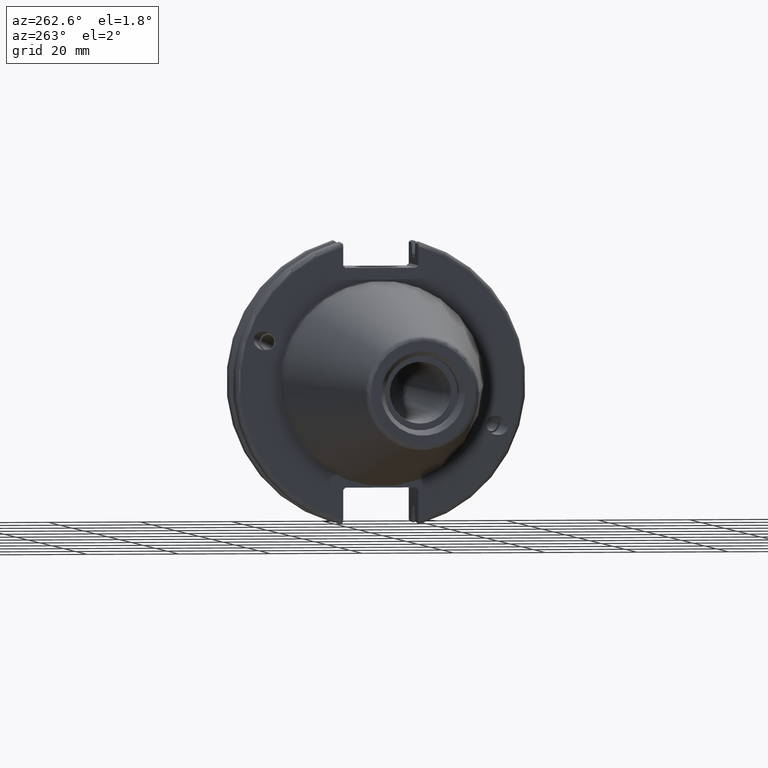
[diagram: clean part render]
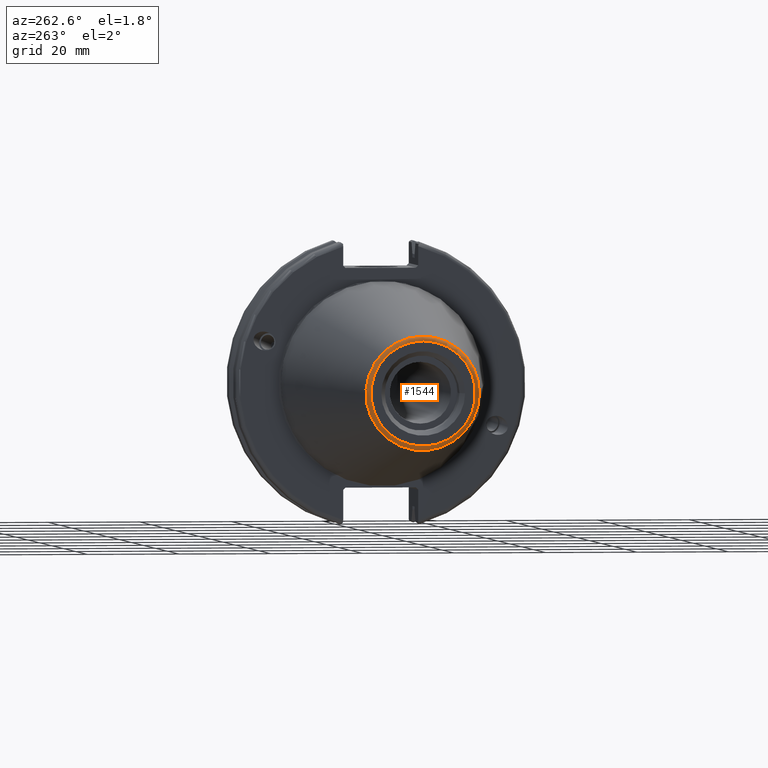
[diagram: same view with one face highlighted and labeled with its STEP entity id]
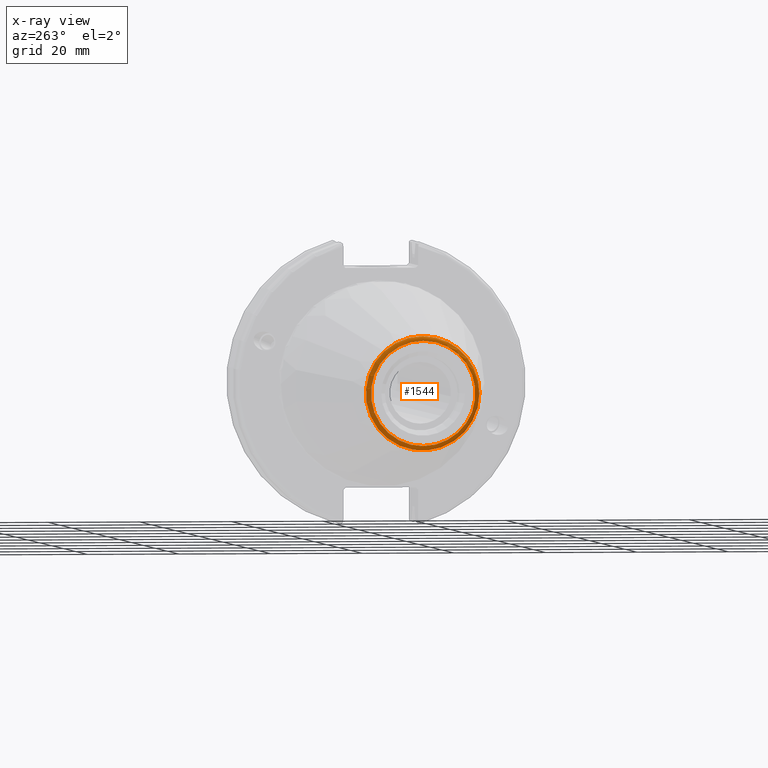
[diagram: x-ray of the same camera — body ghosted, the highlighted face saturated]
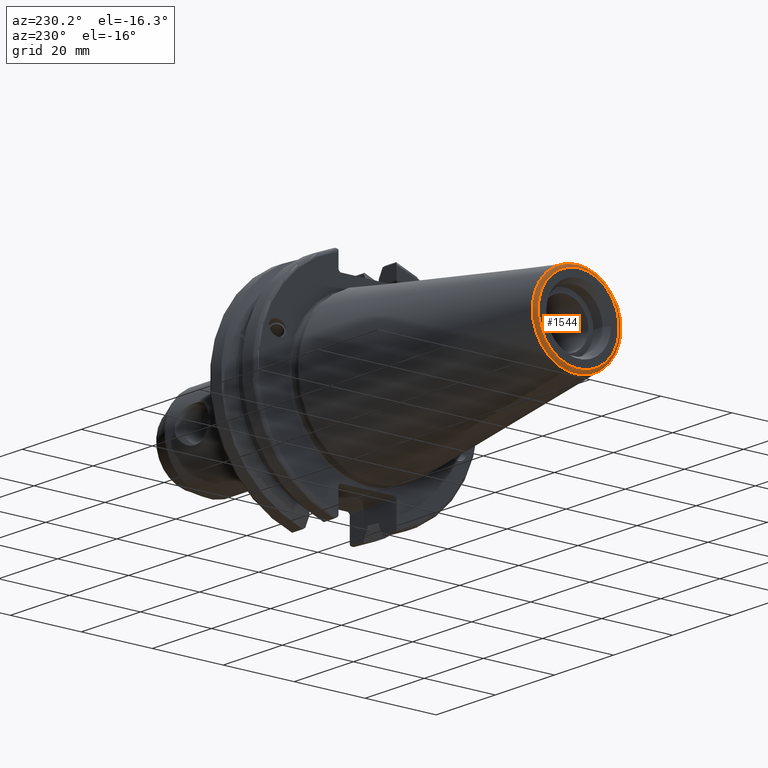
[diagram: same view with one face highlighted and labeled with its STEP entity id]
A machine part, auxiliary view. The second image highlights one B-rep face of the part: STEP entity #1544.
The next image is the same camera in x-ray: the body ghosted, the highlighted face saturated — about 0% of this face is hidden behind the body in this view.
A second angle (auxiliary view) of the same face is appended — the face is thin or edge-on in the first view.
In plain terms, the highlighted toroidal blend (fillet) surface has major radius 11.4071 mm and minor (blend) radius 1 mm.
Its self-contained STEP definition (entity closure, byte-faithful):
#412=FACE_OUTER_BOUND('',#510,.T.);
#510=EDGE_LOOP('',(#1341,#1342,#1343,#1344,#1345));
#602=CIRCLE('',#1729,12.3966635780937);
#603=CIRCLE('',#1730,12.3966635780937);
#604=CIRCLE('',#1731,1.);
#605=CIRCLE('',#1732,11.4071305970304);
#760=VERTEX_POINT('',#3004);
#761=VERTEX_POINT('',#3005);
#762=VERTEX_POINT('',#3008);
#971=EDGE_CURVE('',#760,#761,#602,.T.);
#972=EDGE_CURVE('',#761,#760,#603,.T.);
#973=EDGE_CURVE('',#760,#762,#604,.T.);
#974=EDGE_CURVE('',#762,#762,#605,.T.);
#1341=ORIENTED_EDGE('',*,*,#971,.T.);
#1342=ORIENTED_EDGE('',*,*,#972,.T.);
#1343=ORIENTED_EDGE('',*,*,#973,.T.);
#1344=ORIENTED_EDGE('',*,*,#974,.T.);
#1345=ORIENTED_EDGE('',*,*,#973,.F.);
#1489=TOROIDAL_SURFACE('',#1728,11.4071305970304,1.);
#1544=ADVANCED_FACE('',(#412),#1489,.T.);
#1728=AXIS2_PLACEMENT_3D('',#3003,#2110,#2111);
#1729=AXIS2_PLACEMENT_3D('',#3006,#2112,#2113);
#1730=AXIS2_PLACEMENT_3D('',#3007,#2114,#2115);
#1731=AXIS2_PLACEMENT_3D('',#3009,#2116,#2117);
#1732=AXIS2_PLACEMENT_3D('',#3010,#2118,#2119);
#2110=DIRECTION('center_axis',(1.,0.,0.));
#2111=DIRECTION('ref_axis',(0.,0.,-1.));
#2112=DIRECTION('center_axis',(-1.,0.,0.));
#2113=DIRECTION('ref_axis',(0.,-1.,3.06161699786838E-17));
#2114=DIRECTION('center_axis',(-1.,0.,0.));
#2115=DIRECTION('ref_axis',(0.,-1.,3.06161699786838E-17));
#2116=DIRECTION('center_axis',(0.,-1.,-1.22464679914735E-16));
#2117=DIRECTION('ref_axis',(0.,-1.22464679914735E-16,1.));
#2118=DIRECTION('center_axis',(1.,0.,0.));
#2119=DIRECTION('ref_axis',(0.,-1.,1.83697019872103E-16));
#3003=CARTESIAN_POINT('Origin',(-67.25,0.,0.));
#3004=CARTESIAN_POINT('',(-67.3943068930717,-1.5181534371019E-15,12.3966635780937));
#3005=CARTESIAN_POINT('',(-67.3943068930718,-12.3966635780937,-1.5181534371019E-15));
#3006=CARTESIAN_POINT('Origin',(-67.3943068930717,0.,-1.89769179637738E-15));
#3007=CARTESIAN_POINT('Origin',(-67.3943068930717,0.,-1.89769179637738E-15));
#3008=CARTESIAN_POINT('',(-68.25,-1.39697059731091E-15,11.4071305970304));
#3009=CARTESIAN_POINT('Origin',(-67.25,-1.39697059731091E-15,11.4071305970304));
#3010=CARTESIAN_POINT('Origin',(-68.25,0.,0.));